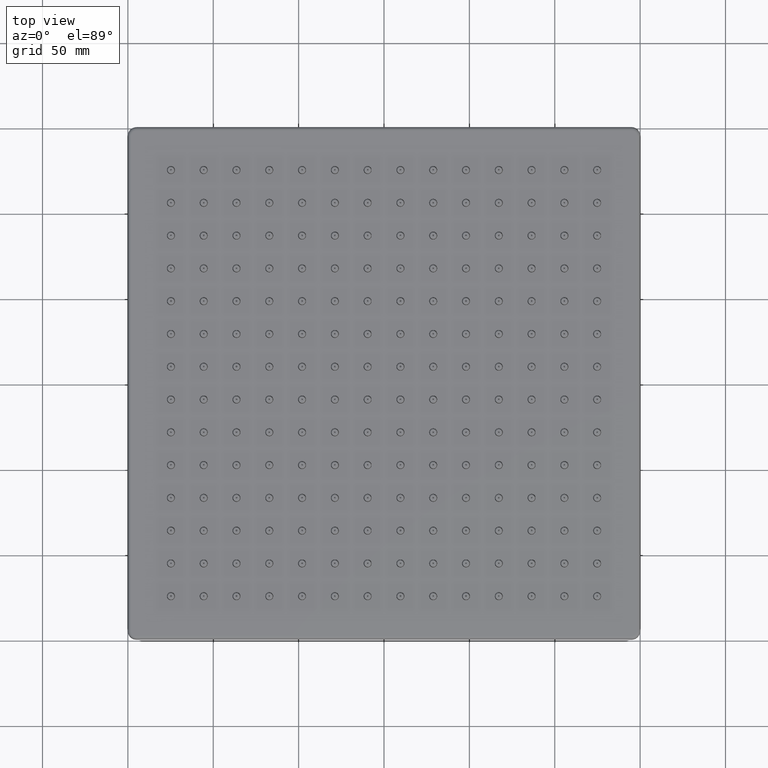
[diagram: clean part render]
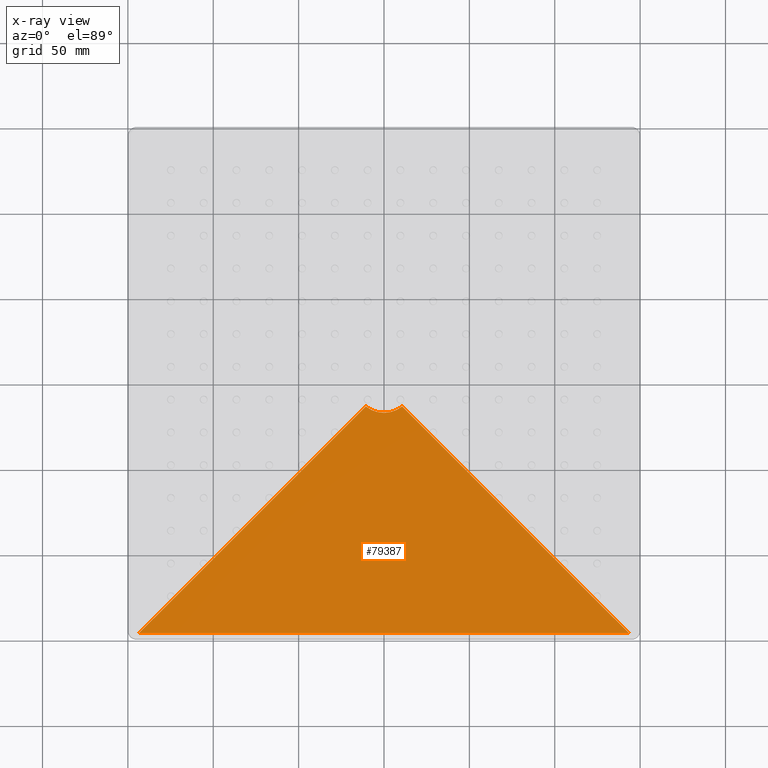
[diagram: x-ray — body ghosted, one internal face saturated and labeled with its STEP entity id]
A machine part, top view, then the same camera in x-ray: the body is ghosted and one INTERNAL B-rep face — a face not visible from any outside direction — is saturated and labeled: STEP entity #79387.
In plain terms, the highlighted planar face has unit normal (0, 0.0137, 0.9999).
Its self-contained STEP definition (entity closure, byte-faithful):
#78324=DIRECTION('',(-7.070734080763E-1,7.070734080763E-1,9.715512480169E-3));
#78325=VECTOR('',#78324,7.389878422373E0);
#78326=CARTESIAN_POINT('',(5.644056589010E0,-5.752238959862E0,
-2.844934943651E-2));
#78327=LINE('',#78326,#78325);
#78328=CARTESIAN_POINT('',(4.188700676331E-1,-5.270524384858E-1,
4.334710660348E-2));
#78329=CARTESIAN_POINT('',(3.575615083385E-1,-5.757768509029E-1,
4.267761086035E-2));
#78330=CARTESIAN_POINT('',(2.257088801407E-1,-6.467655864419E-1,
4.170219312012E-2));
#78331=CARTESIAN_POINT('',(7.831510730837E-2,-6.732283464567E-1,
4.133858267717E-2));
#78332=CARTESIAN_POINT('',(0.E0,-6.732283464567E-1,4.133858267717E-2));
#78334=CARTESIAN_POINT('',(0.E0,-6.732283464567E-1,4.133858267717E-2));
#78335=CARTESIAN_POINT('',(-7.831510730879E-2,-6.732283464567E-1,
4.133858267717E-2));
#78336=CARTESIAN_POINT('',(-2.257088801419E-1,-6.467655864417E-1,
4.170219312012E-2));
#78337=CARTESIAN_POINT('',(-3.575615083401E-1,-5.757768509020E-1,
4.267761086036E-2));
#78338=CARTESIAN_POINT('',(-4.188700676348E-1,-5.270524384845E-1,
4.334710660350E-2));
#78340=DIRECTION('',(-7.070734080762E-1,-7.070734080762E-1,-9.715512494318E-3));
#78341=VECTOR('',#78340,7.389878422374E0);
#78342=CARTESIAN_POINT('',(-4.188700676352E-1,-5.270524384842E-1,
4.334710660352E-2));
#78343=LINE('',#78342,#78341);
#78344=DIRECTION('',(-1.E0,1.163716080819E-13,-9.216804461867E-12));
#78345=VECTOR('',#78344,1.128811317802E1);
#78346=CARTESIAN_POINT('',(5.644056589010E0,-5.752238959862E0,
-2.844934943651E-2));
#78347=LINE('',#78346,#78345);
#79182=VERTEX_POINT('',#78328);
#79183=VERTEX_POINT('',#78332);
#79195=CARTESIAN_POINT('',(5.644056589010E0,-5.752238959862E0,
-2.844934943651E-2));
#79196=CARTESIAN_POINT('',(-5.644056589012E0,-5.752238959861E0,
-2.844934954055E-2));
#79197=VERTEX_POINT('',#79195);
#79198=VERTEX_POINT('',#79196);
#79199=VERTEX_POINT('',#78338);
#79371=CARTESIAN_POINT('',(-6.535433070866E0,-5.830708661417E0,
-2.952755905512E-2));
#79372=DIRECTION('',(0.E0,1.373916109839E-2,-9.999056132717E-1));
#79373=DIRECTION('',(0.E0,9.999056132717E-1,1.373916109839E-2));
#79374=AXIS2_PLACEMENT_3D('',#79371,#79372,#79373);
#79375=PLANE('',#79374);
#79377=ORIENTED_EDGE('',*,*,#79376,.F.);
#79379=ORIENTED_EDGE('',*,*,#79378,.T.);
#79380=ORIENTED_EDGE('',*,*,#79344,.T.);
#79382=ORIENTED_EDGE('',*,*,#79381,.T.);
#79384=ORIENTED_EDGE('',*,*,#79383,.T.);
#79385=EDGE_LOOP('',(#79377,#79379,#79380,#79382,#79384));
#79386=FACE_OUTER_BOUND('',#79385,.F.);
#79387=ADVANCED_FACE('',(#79386),#79375,.T.);
#78333=B_SPLINE_CURVE_WITH_KNOTS('',3,(#78328,#78329,#78330,#78331,#78332),
.UNSPECIFIED.,.F.,.F.,(4,1,4),(0.E0,5.E-1,1.E0),.UNSPECIFIED.);
#78339=B_SPLINE_CURVE_WITH_KNOTS('',3,(#78334,#78335,#78336,#78337,#78338),
.UNSPECIFIED.,.F.,.F.,(4,1,4),(0.E0,5.E-1,1.E0),.UNSPECIFIED.);
#79344=EDGE_CURVE('',#79182,#79183,#78333,.T.);
#79376=EDGE_CURVE('',#79197,#79198,#78347,.T.);
#79378=EDGE_CURVE('',#79197,#79182,#78327,.T.);
#79381=EDGE_CURVE('',#79183,#79199,#78339,.T.);
#79383=EDGE_CURVE('',#79199,#79198,#78343,.T.);